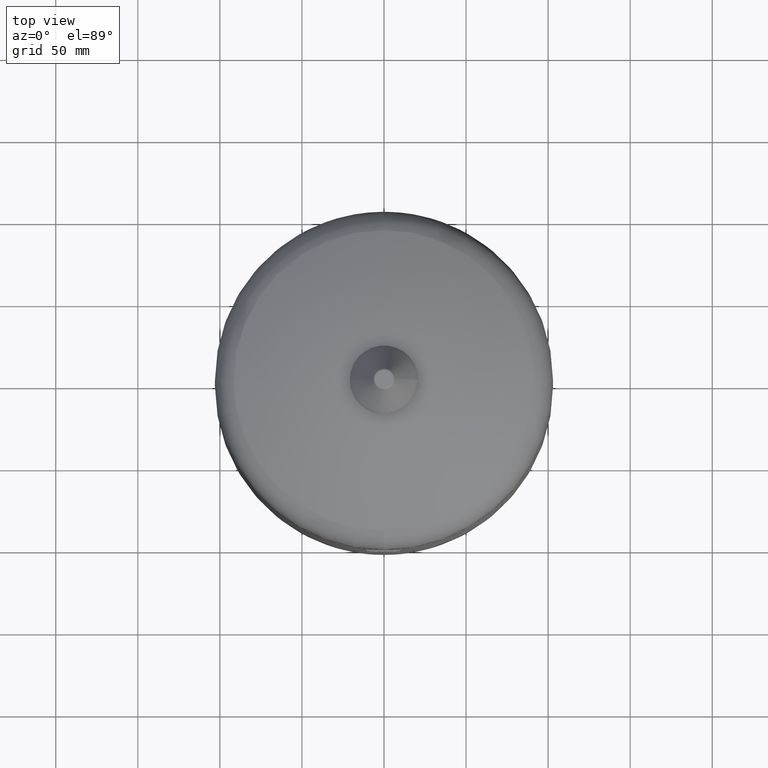
[diagram: clean part render]
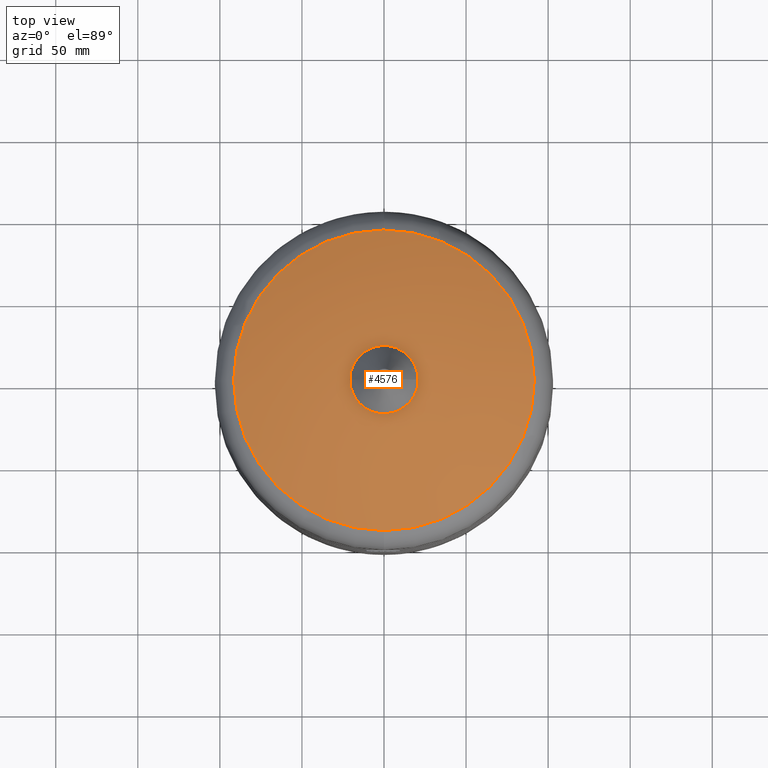
[diagram: same view with one face highlighted and labeled with its STEP entity id]
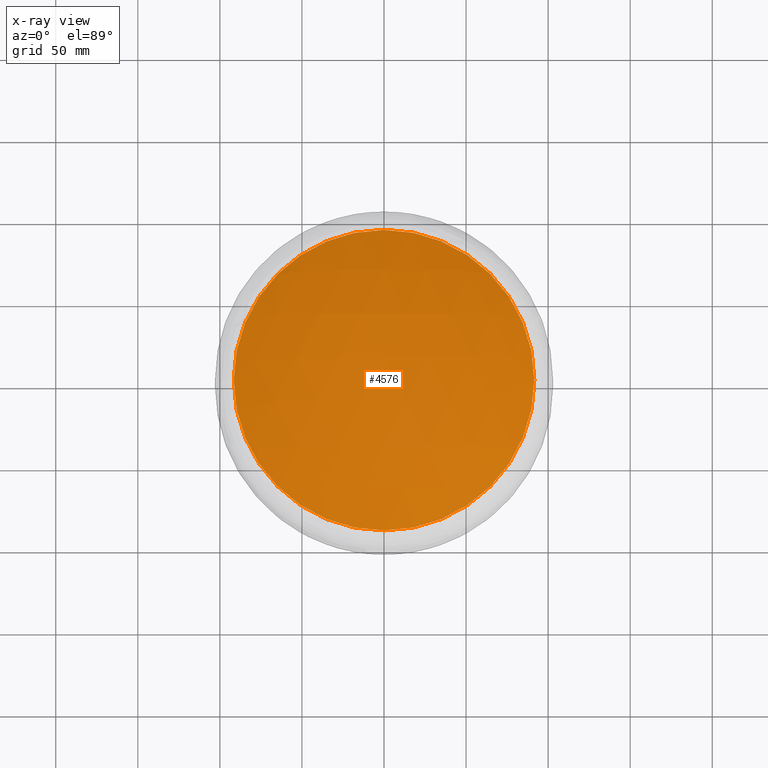
[diagram: x-ray of the same camera — body ghosted, the highlighted face saturated]
A machine part, top view. The second image highlights one B-rep face of the part: STEP entity #4576.
The next image is the same camera in x-ray: the body ghosted, the highlighted face saturated — about 0% of this face is hidden behind the body in this view.
In plain terms, the highlighted spherical surface has radius 207 mm.
Its self-contained STEP definition (entity closure, byte-faithful):
#4515=CARTESIAN_POINT('',(-2.615178E-015,-91.568364611260066,289.645454031116340));
#4516=VERTEX_POINT('',#4515);
#4532=CARTESIAN_POINT('',(8.598342E-015,91.568364611260066,289.645454031116340));
#4533=VERTEX_POINT('',#4532);
#4541=CARTESIAN_POINT('',(91.568364611260066,3.425114E-015,289.645454031116340));
#4542=VERTEX_POINT('',#4541);
#4543=CARTESIAN_POINT('',(-2.615178E-015,3.425114E-015,289.645454031116340));
#4544=DIRECTION('',(0.0,0.0,-1.0));
#4545=DIRECTION('',(1.0,0.0,0.0));
#4546=AXIS2_PLACEMENT_3D('',#4543,#4544,#4545);
#4547=CIRCLE('',#4546,91.568364611260066);
#4548=EDGE_CURVE('',#4533,#4542,#4547,.T.);
#4550=CARTESIAN_POINT('',(-2.615178E-015,3.425114E-015,289.645454031116340));
#4551=DIRECTION('',(0.0,0.0,-1.0));
#4552=DIRECTION('',(1.0,0.0,0.0));
#4553=AXIS2_PLACEMENT_3D('',#4550,#4551,#4552);
#4554=CIRCLE('',#4553,91.568364611260066);
#4555=EDGE_CURVE('',#4542,#4516,#4554,.T.);
#4560=CARTESIAN_POINT('',(1.255745E-015,-3.067740E-014,103.999999999999940));
#4561=DIRECTION('',(0.0,-1.0,0.0));
#4562=DIRECTION('',(-1.0,0.0,0.0));
#4563=AXIS2_PLACEMENT_3D('',#4560,#4561,#4562);
#4564=SPHERICAL_SURFACE('',#4563,207.000000000000060);
#4565=ORIENTED_EDGE('',*,*,#4555,.F.);
#4566=ORIENTED_EDGE('',*,*,#4548,.F.);
#4567=CARTESIAN_POINT('',(-2.615178E-015,3.425114E-015,289.645454031116340));
#4568=DIRECTION('',(0.0,0.0,-1.0));
#4569=DIRECTION('',(1.0,0.0,0.0));
#4570=AXIS2_PLACEMENT_3D('',#4567,#4568,#4569);
#4571=CIRCLE('',#4570,91.568364611260066);
#4572=EDGE_CURVE('',#4516,#4533,#4571,.T.);
#4573=ORIENTED_EDGE('',*,*,#4572,.F.);
#4574=EDGE_LOOP('',(#4565,#4566,#4573));
#4575=FACE_OUTER_BOUND('',#4574,.T.);
#4576=ADVANCED_FACE('',(#4575),#4564,.T.);